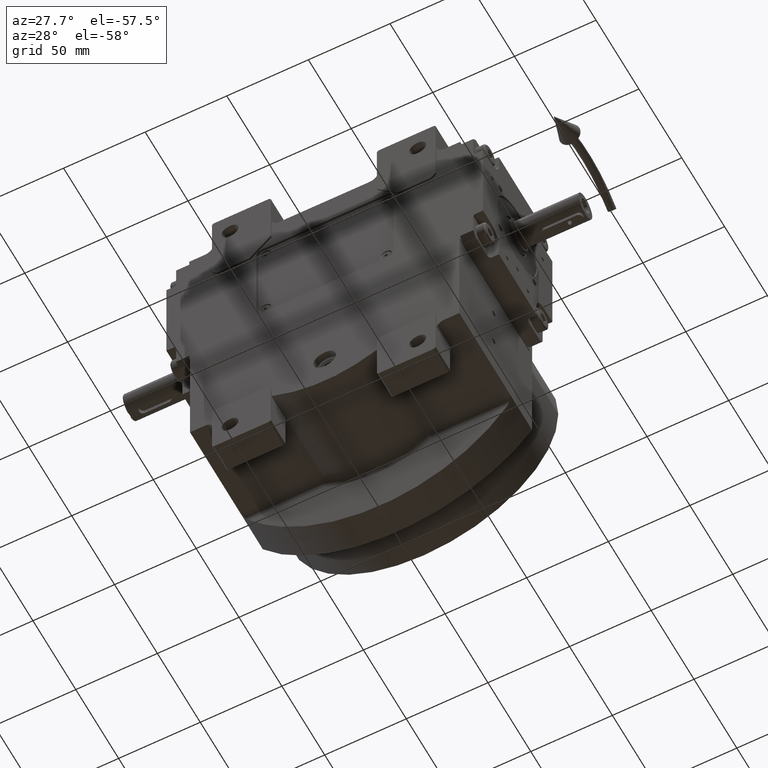
[diagram: clean part render]
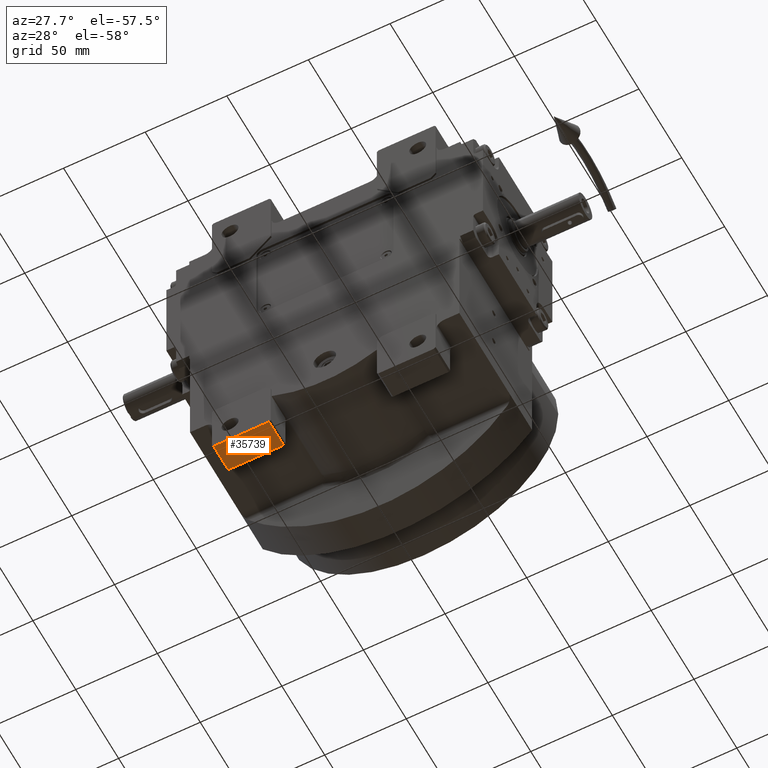
[diagram: same view with one face highlighted and labeled with its STEP entity id]
A machine part, auxiliary view. The second image highlights one B-rep face of the part: STEP entity #35739.
In plain terms, the highlighted planar face has unit normal (0, 0, -1).
Its self-contained STEP definition (entity closure, byte-faithful):
#2342 = DIRECTION ( 'NONE',  ( 0.000000000000000000, 1.000000000000000000, 0.000000000000000000 ) ) ;
#2780 = PLANE ( 'NONE',  #6176 ) ;
#4148 = ORIENTED_EDGE ( 'NONE', *, *, #7005, .F. ) ;
#4584 = CARTESIAN_POINT ( 'NONE',  ( -67.50000000000000000, -41.50000000000000000, -85.00000000000000000 ) ) ;
#5614 = DIRECTION ( 'NONE',  ( 1.000000000000000000, 0.000000000000000000, 0.000000000000000000 ) ) ;
#5808 = VECTOR ( 'NONE', #25729, 1000.000000000000000 ) ;
#6176 = AXIS2_PLACEMENT_3D ( 'NONE', #22825, #37690, #47356 ) ;
#6357 = EDGE_LOOP ( 'NONE', ( #61969, #54207, #4148, #16010 ) ) ;
#6752 = VERTEX_POINT ( 'NONE', #47398 ) ;
#7005 = EDGE_CURVE ( 'NONE', #25720, #13590, #60935, .T. ) ;
#11421 = CARTESIAN_POINT ( 'NONE',  ( -67.50000000000000000, -24.50000000000000000, -85.00000000000000000 ) ) ;
#13590 = VERTEX_POINT ( 'NONE', #34173 ) ;
#14900 = EDGE_CURVE ( 'NONE', #60381, #6752, #55382, .T. ) ;
#16010 = ORIENTED_EDGE ( 'NONE', *, *, #47006, .T. ) ;
#18975 = LINE ( 'NONE', #44156, #46231 ) ;
#20586 = CARTESIAN_POINT ( 'NONE',  ( -67.50000000000000000, -41.50000000000000000, -85.00000000000000000 ) ) ;
#22825 = CARTESIAN_POINT ( 'NONE',  ( -68.50000000000000000, -24.50000000000000000, -85.00000000000000000 ) ) ;
#23355 = LINE ( 'NONE', #56317, #31326 ) ;
#25720 = VERTEX_POINT ( 'NONE', #4584 ) ;
#25729 = DIRECTION ( 'NONE',  ( 1.000000000000000000, 0.000000000000000000, 0.000000000000000000 ) ) ;
#27667 = FACE_OUTER_BOUND ( 'NONE', #6357, .T. ) ;
#30674 = EDGE_CURVE ( 'NONE', #13590, #6752, #23355, .T. ) ;
#31326 = VECTOR ( 'NONE', #2342, 1000.000000000000000 ) ;
#34173 = CARTESIAN_POINT ( 'NONE',  ( -33.50000000000000000, -41.50000000000000000, -85.00000000000000000 ) ) ;
#35739 = ADVANCED_FACE ( 'NONE', ( #27667 ), #2780, .T. ) ;
#37690 = DIRECTION ( 'NONE',  ( 0.000000000000000000, 0.000000000000000000, -1.000000000000000000 ) ) ;
#42958 = VECTOR ( 'NONE', #5614, 1000.000000000000000 ) ;
#43520 = DIRECTION ( 'NONE',  ( 0.000000000000000000, 1.000000000000000000, 0.000000000000000000 ) ) ;
#44156 = CARTESIAN_POINT ( 'NONE',  ( -67.50000000000000000, -41.50000000000000000, -85.00000000000000000 ) ) ;
#46231 = VECTOR ( 'NONE', #43520, 1000.000000000000000 ) ;
#47006 = EDGE_CURVE ( 'NONE', #25720, #60381, #18975, .T. ) ;
#47356 = DIRECTION ( 'NONE',  ( 1.000000000000000000, 0.000000000000000000, 0.000000000000000000 ) ) ;
#47398 = CARTESIAN_POINT ( 'NONE',  ( -33.50000000000000000, -24.50000000000000000, -85.00000000000000000 ) ) ;
#52979 = CARTESIAN_POINT ( 'NONE',  ( -67.50000000000000000, -24.50000000000000000, -85.00000000000000000 ) ) ;
#54207 = ORIENTED_EDGE ( 'NONE', *, *, #30674, .F. ) ;
#55382 = LINE ( 'NONE', #11421, #42958 ) ;
#56317 = CARTESIAN_POINT ( 'NONE',  ( -33.50000000000000000, -41.50000000000000000, -85.00000000000000000 ) ) ;
#60381 = VERTEX_POINT ( 'NONE', #52979 ) ;
#60935 = LINE ( 'NONE', #20586, #5808 ) ;
#61969 = ORIENTED_EDGE ( 'NONE', *, *, #14900, .T. ) ;